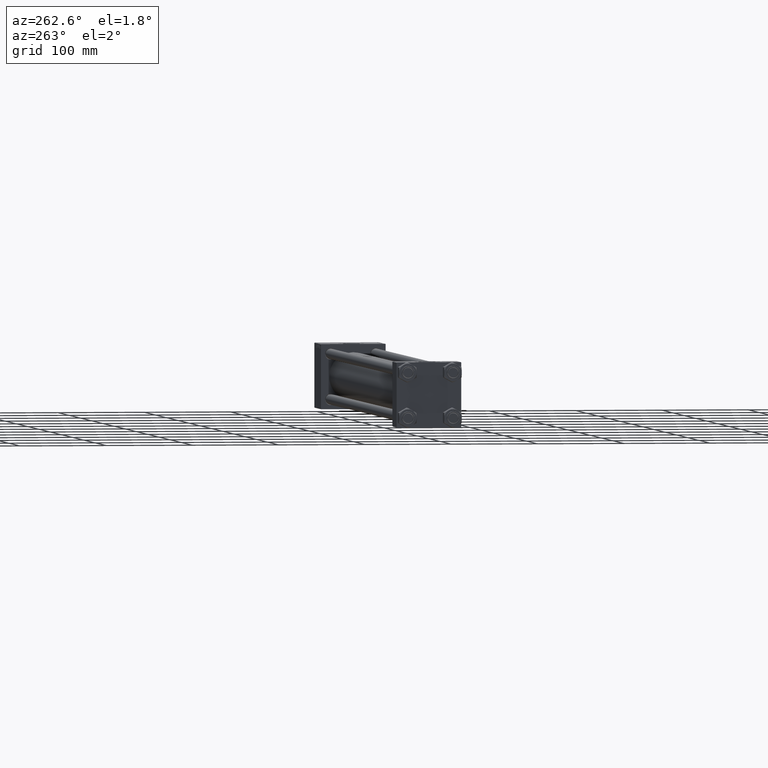
[diagram: clean part render]
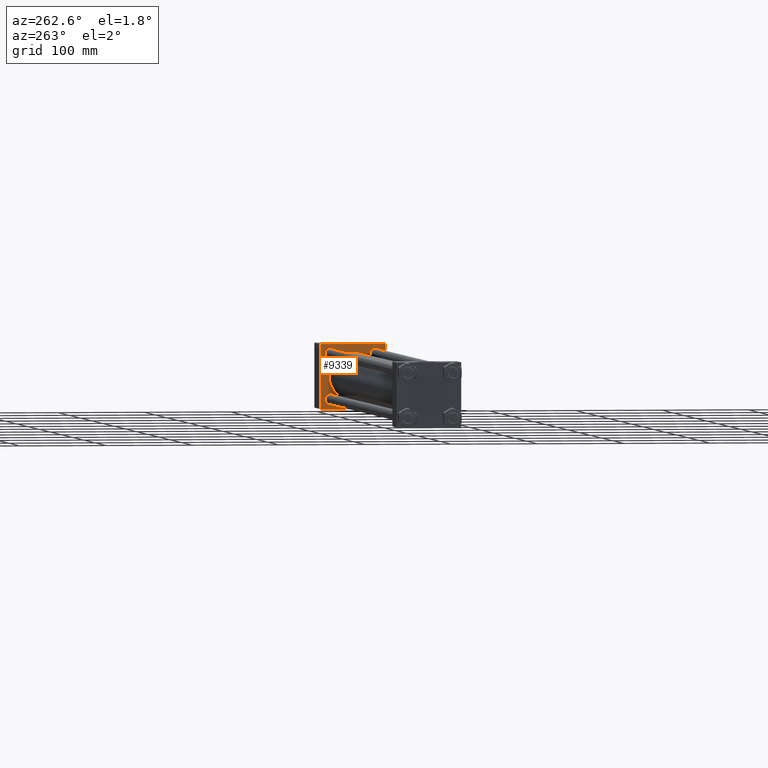
[diagram: same view with one face highlighted and labeled with its STEP entity id]
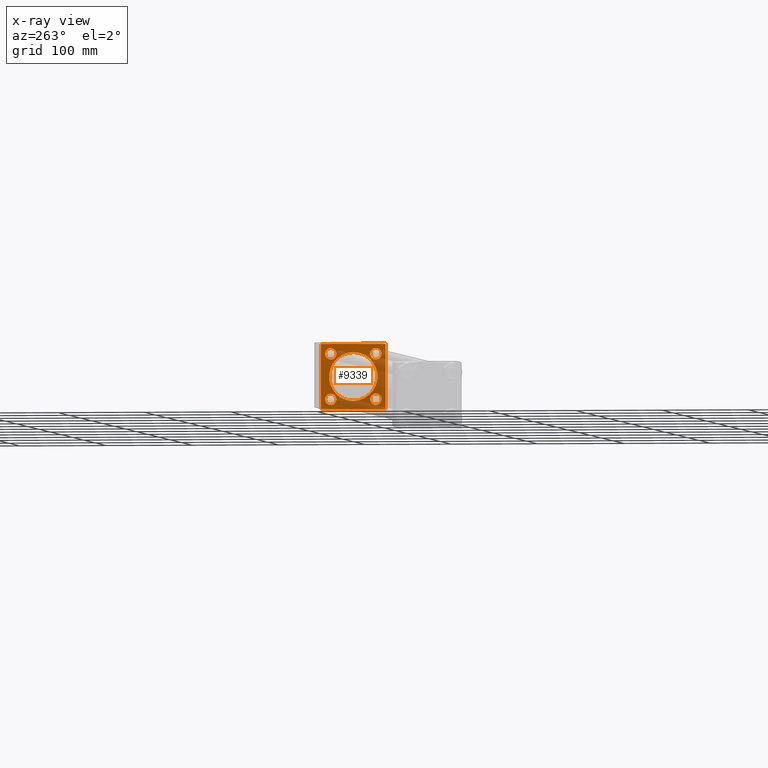
[diagram: x-ray of the same camera — body ghosted, the highlighted face saturated]
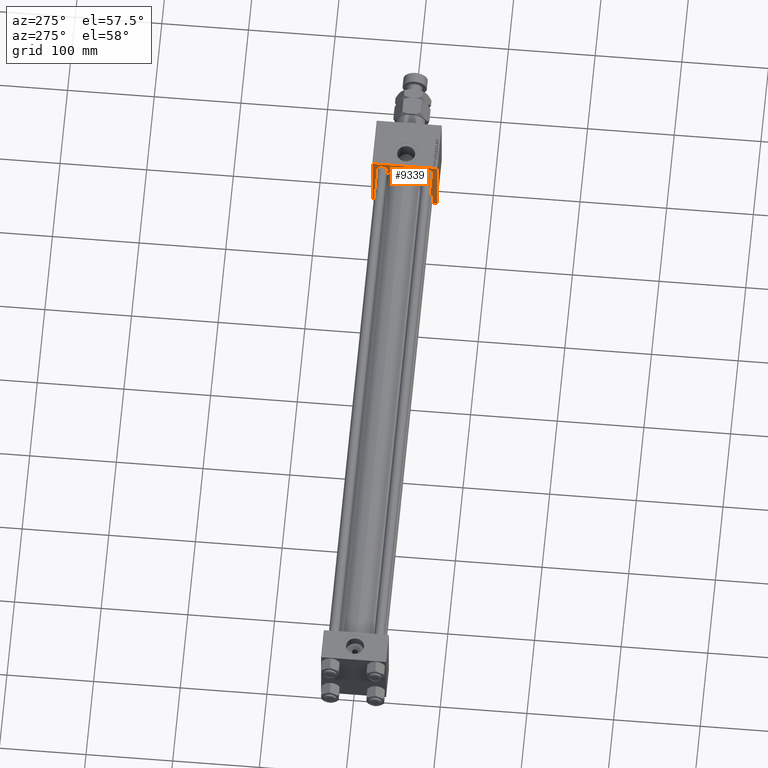
[diagram: same view with one face highlighted and labeled with its STEP entity id]
A machine part, auxiliary view. The second image highlights one B-rep face of the part: STEP entity #9339.
The next image is the same camera in x-ray: the body ghosted, the highlighted face saturated — about 47% of this face is hidden behind the body in this view.
A second angle (auxiliary view) of the same face is appended — the face is thin or edge-on in the first view.
In plain terms, the highlighted planar face has unit normal (-1, 0, 0).
Its self-contained STEP definition (entity closure, byte-faithful):
#653 = VECTOR ( 'NONE', #37815, 1000.000000000000114 ) ;
#779 = VERTEX_POINT ( 'NONE', #4717 ) ;
#1319 = ORIENTED_EDGE ( 'NONE', *, *, #37137, .T. ) ;
#1410 = CIRCLE ( 'NONE', #2267, 6.500000000000015987 ) ;
#1451 = CARTESIAN_POINT ( 'NONE',  ( 675.0000000000000000, 37.00000000000005684, -37.50000000000000000 ) ) ;
#1618 = LINE ( 'NONE', #1875, #653 ) ;
#1875 = CARTESIAN_POINT ( 'NONE',  ( 675.0000000000000000, -37.24999999999579359, 37.25000000000406430 ) ) ;
#2068 = CARTESIAN_POINT ( 'NONE',  ( 675.0000000000000000, 37.00000000000005684, 37.49999999999999289 ) ) ;
#2267 = AXIS2_PLACEMENT_3D ( 'NONE', #16405, #8536, #40525 ) ;
#2824 = CARTESIAN_POINT ( 'NONE',  ( 675.0000000000000000, -26.14999999999999147, 19.64999999999999147 ) ) ;
#3123 = DIRECTION ( 'NONE',  ( 1.000000000000000000, 0.000000000000000000, -0.000000000000000000 ) ) ;
#3215 = ORIENTED_EDGE ( 'NONE', *, *, #44965, .T. ) ;
#3221 = ORIENTED_EDGE ( 'NONE', *, *, #42639, .T. ) ;
#3240 = ORIENTED_EDGE ( 'NONE', *, *, #17795, .T. ) ;
#3599 = VERTEX_POINT ( 'NONE', #28532 ) ;
#3738 = FACE_BOUND ( 'NONE', #35122, .T. ) ;
#4412 = CARTESIAN_POINT ( 'NONE',  ( 675.0000000000000000, -2.602085213965210642E-15, 28.00000000000000000 ) ) ;
#4471 = CARTESIAN_POINT ( 'NONE',  ( 675.0000000000000000, -26.14999999999999147, -19.64999999999999503 ) ) ;
#4717 = CARTESIAN_POINT ( 'NONE',  ( 675.0000000000000000, 8.269258236473784371E-16, -28.00000000000000000 ) ) ;
#4744 = ORIENTED_EDGE ( 'NONE', *, *, #37269, .T. ) ;
#4912 = CIRCLE ( 'NONE', #47666, 28.00000000000000000 ) ;
#5346 = CARTESIAN_POINT ( 'NONE',  ( 675.0000000000000000, 26.14999999999999858, -32.65000000000001990 ) ) ;
#5930 = CARTESIAN_POINT ( 'NONE',  ( 675.0000000000000000, 37.50000000000000000, -37.00000000000004974 ) ) ;
#6294 = DIRECTION ( 'NONE',  ( -0.000000000000000000, -0.7071067811865426878, -0.7071067811865524577 ) ) ;
#6912 = DIRECTION ( 'NONE',  ( 1.000000000000000000, 0.000000000000000000, 0.000000000000000000 ) ) ;
#7066 = CARTESIAN_POINT ( 'NONE',  ( 675.0000000000000000, 37.25000000000027711, -37.24999999999976552 ) ) ;
#7322 = DIRECTION ( 'NONE',  ( 0.000000000000000000, 0.000000000000000000, 1.000000000000000000 ) ) ;
#7640 = EDGE_LOOP ( 'NONE', ( #28156, #16929, #14039, #12636, #49103, #24769, #42997, #4744 ) ) ;
#7681 = DIRECTION ( 'NONE',  ( 0.000000000000000000, 0.000000000000000000, 1.000000000000000000 ) ) ;
#8536 = DIRECTION ( 'NONE',  ( 1.000000000000000000, 0.000000000000000000, -0.000000000000000000 ) ) ;
#8592 = CARTESIAN_POINT ( 'NONE',  ( 675.0000000000000000, 26.14999999999999858, -19.64999999999998792 ) ) ;
#9234 = VERTEX_POINT ( 'NONE', #29752 ) ;
#9339 = ADVANCED_FACE ( 'NONE', ( #36016, #31826, #3738, #15815, #23683, #43879 ), #16078, .T. ) ;
#10515 = CARTESIAN_POINT ( 'NONE',  ( 675.0000000000000000, 26.14999999999999858, -26.15000000000000213 ) ) ;
#10945 = VERTEX_POINT ( 'NONE', #2824 ) ;
#11902 = DIRECTION ( 'NONE',  ( 0.000000000000000000, 0.000000000000000000, -1.000000000000000000 ) ) ;
#11918 = EDGE_CURVE ( 'NONE', #13038, #30018, #22209, .T. ) ;
#11983 = EDGE_CURVE ( 'NONE', #14784, #33675, #36338, .T. ) ;
#12059 = DIRECTION ( 'NONE',  ( 0.000000000000000000, 0.000000000000000000, 1.000000000000000000 ) ) ;
#12636 = ORIENTED_EDGE ( 'NONE', *, *, #15433, .T. ) ;
#13038 = VERTEX_POINT ( 'NONE', #40924 ) ;
#13133 = CARTESIAN_POINT ( 'NONE',  ( 675.0000000000000000, 37.50000000000000000, -37.50000000000000000 ) ) ;
#13509 = CARTESIAN_POINT ( 'NONE',  ( 675.0000000000000000, 37.50000000000000000, 37.49999999999999289 ) ) ;
#13561 = DIRECTION ( 'NONE',  ( 0.000000000000000000, 0.000000000000000000, -1.000000000000000000 ) ) ;
#13953 = CARTESIAN_POINT ( 'NONE',  ( 675.0000000000000000, -37.24999999999997158, -37.24999999999997158 ) ) ;
#14002 = AXIS2_PLACEMENT_3D ( 'NONE', #16336, #19753, #7681 ) ;
#14039 = ORIENTED_EDGE ( 'NONE', *, *, #11983, .F. ) ;
#14440 = LINE ( 'NONE', #7066, #32257 ) ;
#14784 = VERTEX_POINT ( 'NONE', #27406 ) ;
#14936 = ORIENTED_EDGE ( 'NONE', *, *, #49532, .T. ) ;
#15257 = CARTESIAN_POINT ( 'NONE',  ( 675.0000000000000000, -37.50000000000000711, -36.99999999999995026 ) ) ;
#15424 = CIRCLE ( 'NONE', #49781, 6.500000000000008882 ) ;
#15433 = EDGE_CURVE ( 'NONE', #14784, #9234, #1618, .T. ) ;
#15449 = VERTEX_POINT ( 'NONE', #33641 ) ;
#15815 = FACE_BOUND ( 'NONE', #25823, .T. ) ;
#16078 = PLANE ( 'NONE',  #14002 ) ;
#16081 = VERTEX_POINT ( 'NONE', #8592 ) ;
#16336 = CARTESIAN_POINT ( 'NONE',  ( 675.0000000000000000, 0.000000000000000000, 0.000000000000000000 ) ) ;
#16405 = CARTESIAN_POINT ( 'NONE',  ( 675.0000000000000000, -26.14999999999999147, -26.15000000000000924 ) ) ;
#16731 = EDGE_CURVE ( 'NONE', #779, #24915, #19990, .T. ) ;
#16929 = ORIENTED_EDGE ( 'NONE', *, *, #18720, .T. ) ;
#17145 = DIRECTION ( 'NONE',  ( 1.000000000000000000, 0.000000000000000000, 0.000000000000000000 ) ) ;
#17795 = EDGE_CURVE ( 'NONE', #24915, #779, #4912, .T. ) ;
#17846 = LINE ( 'NONE', #13133, #32678 ) ;
#17936 = ORIENTED_EDGE ( 'NONE', *, *, #34795, .T. ) ;
#18628 = DIRECTION ( 'NONE',  ( 1.000000000000000000, 0.000000000000000000, -0.000000000000000000 ) ) ;
#18720 = EDGE_CURVE ( 'NONE', #3599, #33675, #45701, .T. ) ;
#19401 = CARTESIAN_POINT ( 'NONE',  ( 675.0000000000000000, 26.14999999999999858, 26.15000000000000213 ) ) ;
#19753 = DIRECTION ( 'NONE',  ( -1.000000000000000000, -0.000000000000000000, 0.000000000000000000 ) ) ;
#19990 = CIRCLE ( 'NONE', #46757, 28.00000000000000000 ) ;
#20417 = LINE ( 'NONE', #36416, #31857 ) ;
#20590 = CIRCLE ( 'NONE', #27297, 6.500000000000008882 ) ;
#20670 = EDGE_CURVE ( 'NONE', #36918, #3599, #17846, .T. ) ;
#20965 = EDGE_CURVE ( 'NONE', #44408, #13038, #20417, .T. ) ;
#21313 = ORIENTED_EDGE ( 'NONE', *, *, #16731, .T. ) ;
#22173 = DIRECTION ( 'NONE',  ( 0.000000000000000000, 0.000000000000000000, 1.000000000000000000 ) ) ;
#22209 = LINE ( 'NONE', #41351, #42401 ) ;
#23266 = VERTEX_POINT ( 'NONE', #4471 ) ;
#23597 = CARTESIAN_POINT ( 'NONE',  ( 675.0000000000000000, 26.14999999999999858, 26.15000000000000213 ) ) ;
#23683 = FACE_BOUND ( 'NONE', #25001, .T. ) ;
#24445 = VERTEX_POINT ( 'NONE', #41564 ) ;
#24728 = AXIS2_PLACEMENT_3D ( 'NONE', #35264, #27664, #46818 ) ;
#24753 = CARTESIAN_POINT ( 'NONE',  ( 675.0000000000000000, -2.602085213965210642E-15, 0.000000000000000000 ) ) ;
#24769 = ORIENTED_EDGE ( 'NONE', *, *, #20965, .T. ) ;
#24915 = VERTEX_POINT ( 'NONE', #4412 ) ;
#25001 = EDGE_LOOP ( 'NONE', ( #3240, #21313 ) ) ;
#25823 = EDGE_LOOP ( 'NONE', ( #3215, #14936 ) ) ;
#26024 = DIRECTION ( 'NONE',  ( 0.000000000000000000, -0.7071067811865474617, 0.7071067811865474617 ) ) ;
#26500 = DIRECTION ( 'NONE',  ( 0.000000000000000000, 0.000000000000000000, 1.000000000000000000 ) ) ;
#26590 = AXIS2_PLACEMENT_3D ( 'NONE', #29747, #30014, #42312 ) ;
#27297 = AXIS2_PLACEMENT_3D ( 'NONE', #19401, #3123, #26500 ) ;
#27406 = CARTESIAN_POINT ( 'NONE',  ( 675.0000000000000000, -37.50000000000000000, 36.99999999999992184 ) ) ;
#27634 = VERTEX_POINT ( 'NONE', #35406 ) ;
#27664 = DIRECTION ( 'NONE',  ( 1.000000000000000000, 0.000000000000000000, -0.000000000000000000 ) ) ;
#28156 = ORIENTED_EDGE ( 'NONE', *, *, #20670, .T. ) ;
#28191 = VECTOR ( 'NONE', #44732, 1000.000000000000000 ) ;
#28216 = CARTESIAN_POINT ( 'NONE',  ( 675.0000000000000000, -37.50000000000000000, 37.49999999999997868 ) ) ;
#28300 = DIRECTION ( 'NONE',  ( 0.000000000000000000, 0.7071067811865474617, -0.7071067811865474617 ) ) ;
#28532 = CARTESIAN_POINT ( 'NONE',  ( 675.0000000000000000, -36.99999999999995737, -37.50000000000000000 ) ) ;
#28927 = ORIENTED_EDGE ( 'NONE', *, *, #36932, .T. ) ;
#28949 = DIRECTION ( 'NONE',  ( 0.000000000000000000, 0.000000000000000000, -1.000000000000000000 ) ) ;
#29299 = VERTEX_POINT ( 'NONE', #5346 ) ;
#29508 = DIRECTION ( 'NONE',  ( 0.000000000000000000, -1.000000000000000000, -1.850371707708594316E-16 ) ) ;
#29747 = CARTESIAN_POINT ( 'NONE',  ( 675.0000000000000000, 26.14999999999999858, -26.15000000000000213 ) ) ;
#29752 = CARTESIAN_POINT ( 'NONE',  ( 675.0000000000000000, -36.99999999999982947, 37.49999999999997868 ) ) ;
#30014 = DIRECTION ( 'NONE',  ( 1.000000000000000000, 0.000000000000000000, -0.000000000000000000 ) ) ;
#30018 = VERTEX_POINT ( 'NONE', #5930 ) ;
#30052 = DIRECTION ( 'NONE',  ( 1.000000000000000000, 0.000000000000000000, -0.000000000000000000 ) ) ;
#30091 = VECTOR ( 'NONE', #26024, 1000.000000000000114 ) ;
#30972 = DIRECTION ( 'NONE',  ( 1.000000000000000000, 0.000000000000000000, -0.000000000000000000 ) ) ;
#31826 = FACE_BOUND ( 'NONE', #37839, .T. ) ;
#31857 = VECTOR ( 'NONE', #28300, 1000.000000000000114 ) ;
#32257 = VECTOR ( 'NONE', #6294, 1000.000000000000000 ) ;
#32678 = VECTOR ( 'NONE', #37250, 1000.000000000000000 ) ;
#33462 = CARTESIAN_POINT ( 'NONE',  ( 675.0000000000000000, -26.14999999999999147, 32.65000000000003411 ) ) ;
#33641 = CARTESIAN_POINT ( 'NONE',  ( 675.0000000000000000, 26.14999999999999858, 32.65000000000001990 ) ) ;
#33675 = VERTEX_POINT ( 'NONE', #15257 ) ;
#34795 = EDGE_CURVE ( 'NONE', #27634, #15449, #15424, .T. ) ;
#35122 = EDGE_LOOP ( 'NONE', ( #43167, #39834 ) ) ;
#35264 = CARTESIAN_POINT ( 'NONE',  ( 675.0000000000000000, -26.14999999999999147, 26.15000000000000924 ) ) ;
#35406 = CARTESIAN_POINT ( 'NONE',  ( 675.0000000000000000, 26.14999999999999858, 19.64999999999999147 ) ) ;
#35920 = DIRECTION ( 'NONE',  ( 1.000000000000000000, 0.000000000000000000, -0.000000000000000000 ) ) ;
#36016 = FACE_BOUND ( 'NONE', #40458, .T. ) ;
#36338 = LINE ( 'NONE', #28216, #28191 ) ;
#36416 = CARTESIAN_POINT ( 'NONE',  ( 675.0000000000000000, 37.25000000000002132, 37.25000000000002132 ) ) ;
#36918 = VERTEX_POINT ( 'NONE', #1451 ) ;
#36932 = EDGE_CURVE ( 'NONE', #10945, #50770, #46473, .T. ) ;
#37137 = EDGE_CURVE ( 'NONE', #50770, #10945, #47339, .T. ) ;
#37250 = DIRECTION ( 'NONE',  ( 0.000000000000000000, -1.000000000000000000, 0.000000000000000000 ) ) ;
#37269 = EDGE_CURVE ( 'NONE', #30018, #36918, #14440, .T. ) ;
#37815 = DIRECTION ( 'NONE',  ( -0.000000000000000000, 0.7071067811866260655, 0.7071067811864690800 ) ) ;
#37839 = EDGE_LOOP ( 'NONE', ( #3221, #17936 ) ) ;
#39834 = ORIENTED_EDGE ( 'NONE', *, *, #46469, .T. ) ;
#40458 = EDGE_LOOP ( 'NONE', ( #1319, #28927 ) ) ;
#40525 = DIRECTION ( 'NONE',  ( 0.000000000000000000, 0.000000000000000000, 1.000000000000000000 ) ) ;
#40924 = CARTESIAN_POINT ( 'NONE',  ( 675.0000000000000000, 37.50000000000000000, 37.00000000000004974 ) ) ;
#41351 = CARTESIAN_POINT ( 'NONE',  ( 675.0000000000000000, 37.50000000000000000, 37.49999999999999289 ) ) ;
#41564 = CARTESIAN_POINT ( 'NONE',  ( 675.0000000000000000, -26.14999999999999147, -32.65000000000002700 ) ) ;
#42312 = DIRECTION ( 'NONE',  ( 0.000000000000000000, 0.000000000000000000, 1.000000000000000000 ) ) ;
#42401 = VECTOR ( 'NONE', #13561, 1000.000000000000000 ) ;
#42639 = EDGE_CURVE ( 'NONE', #15449, #27634, #20590, .T. ) ;
#42997 = ORIENTED_EDGE ( 'NONE', *, *, #11918, .T. ) ;
#43024 = DIRECTION ( 'NONE',  ( 0.000000000000000000, 0.000000000000000000, 1.000000000000000000 ) ) ;
#43167 = ORIENTED_EDGE ( 'NONE', *, *, #45465, .T. ) ;
#43462 = AXIS2_PLACEMENT_3D ( 'NONE', #47740, #35920, #12059 ) ;
#43879 = FACE_OUTER_BOUND ( 'NONE', #7640, .T. ) ;
#43961 = AXIS2_PLACEMENT_3D ( 'NONE', #46563, #30052, #22173 ) ;
#44155 = AXIS2_PLACEMENT_3D ( 'NONE', #10515, #30972, #43024 ) ;
#44408 = VERTEX_POINT ( 'NONE', #2068 ) ;
#44732 = DIRECTION ( 'NONE',  ( 0.000000000000000000, -9.251858538542972814E-17, -1.000000000000000000 ) ) ;
#44943 = EDGE_CURVE ( 'NONE', #44408, #9234, #49464, .T. ) ;
#44965 = EDGE_CURVE ( 'NONE', #23266, #24445, #1410, .T. ) ;
#45006 = CIRCLE ( 'NONE', #26590, 6.500000000000015987 ) ;
#45465 = EDGE_CURVE ( 'NONE', #16081, #29299, #47525, .T. ) ;
#45701 = LINE ( 'NONE', #13953, #30091 ) ;
#45990 = CIRCLE ( 'NONE', #43462, 6.500000000000015987 ) ;
#46469 = EDGE_CURVE ( 'NONE', #29299, #16081, #45006, .T. ) ;
#46473 = CIRCLE ( 'NONE', #43961, 6.500000000000015987 ) ;
#46563 = CARTESIAN_POINT ( 'NONE',  ( 675.0000000000000000, -26.14999999999999147, 26.15000000000000924 ) ) ;
#46616 = VECTOR ( 'NONE', #29508, 1000.000000000000000 ) ;
#46757 = AXIS2_PLACEMENT_3D ( 'NONE', #47844, #6912, #11902 ) ;
#46818 = DIRECTION ( 'NONE',  ( 0.000000000000000000, 0.000000000000000000, 1.000000000000000000 ) ) ;
#47339 = CIRCLE ( 'NONE', #24728, 6.500000000000015987 ) ;
#47525 = CIRCLE ( 'NONE', #44155, 6.500000000000015987 ) ;
#47666 = AXIS2_PLACEMENT_3D ( 'NONE', #24753, #17145, #28949 ) ;
#47740 = CARTESIAN_POINT ( 'NONE',  ( 675.0000000000000000, -26.14999999999999147, -26.15000000000000924 ) ) ;
#47844 = CARTESIAN_POINT ( 'NONE',  ( 675.0000000000000000, -2.602085213965210642E-15, 0.000000000000000000 ) ) ;
#49103 = ORIENTED_EDGE ( 'NONE', *, *, #44943, .F. ) ;
#49464 = LINE ( 'NONE', #13509, #46616 ) ;
#49532 = EDGE_CURVE ( 'NONE', #24445, #23266, #45990, .T. ) ;
#49781 = AXIS2_PLACEMENT_3D ( 'NONE', #23597, #18628, #7322 ) ;
#50770 = VERTEX_POINT ( 'NONE', #33462 ) ;